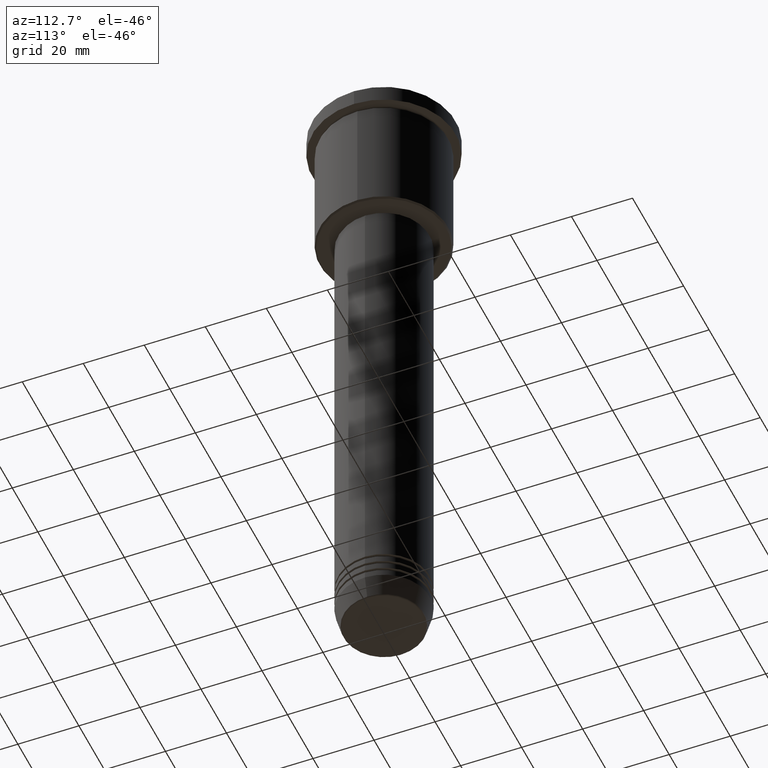
[diagram: clean part render]
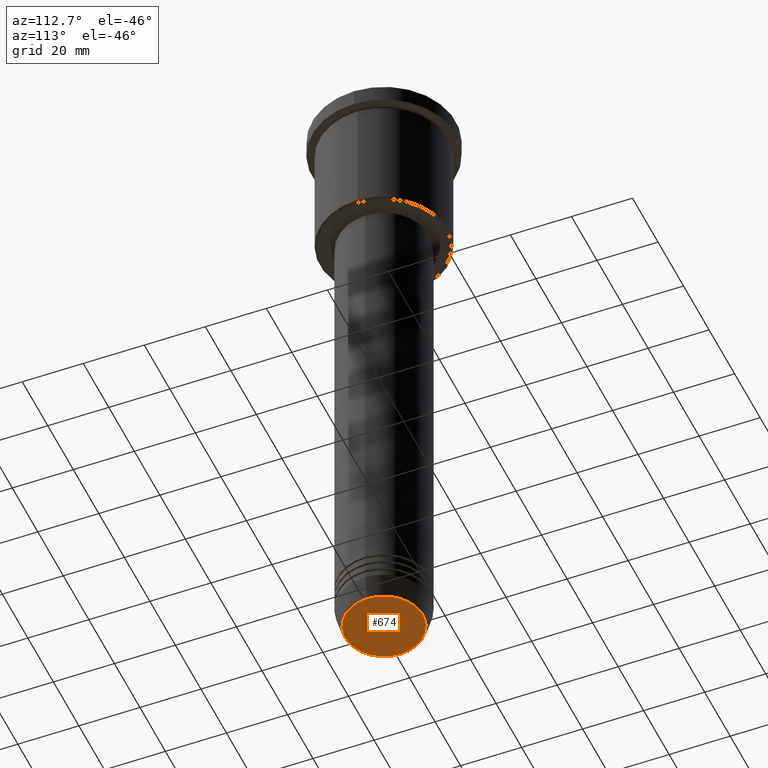
[diagram: same view with one face highlighted and labeled with its STEP entity id]
A machine part, auxiliary view. The second image highlights one B-rep face of the part: STEP entity #674.
In plain terms, the highlighted planar face has unit normal (0, -0, 1).
Its self-contained STEP definition (entity closure, byte-faithful):
#20 = EDGE_CURVE ( 'NONE', #867, #700, #1105, .T. ) ;
#75 = ORIENTED_EDGE ( 'NONE', *, *, #604, .T. ) ;
#125 = DIRECTION ( 'NONE',  ( 0.000000000000000000, -0.000000000000000000, 1.000000000000000000 ) ) ;
#127 = ORIENTED_EDGE ( 'NONE', *, *, #20, .T. ) ;
#165 = DIRECTION ( 'NONE',  ( 1.000000000000000000, 0.000000000000000000, 0.000000000000000000 ) ) ;
#201 = CARTESIAN_POINT ( 'NONE',  ( 0.000000000000000000, 0.000000000000000000, -211.0000000000000284 ) ) ;
#448 = DIRECTION ( 'NONE',  ( 0.000000000000000000, 0.000000000000000000, -1.000000000000000000 ) ) ;
#455 = CARTESIAN_POINT ( 'NONE',  ( 0.000000000000000000, 0.000000000000000000, -211.0000000000000284 ) ) ;
#511 = CARTESIAN_POINT ( 'NONE',  ( -12.74069215899266538, 1.589857736427681824E-15, -211.0000000000000284 ) ) ;
#604 = EDGE_CURVE ( 'NONE', #700, #867, #919, .T. ) ;
#674 = ADVANCED_FACE ( 'NONE', ( #876 ), #1137, .F. ) ;
#700 = VERTEX_POINT ( 'NONE', #511 ) ;
#728 = AXIS2_PLACEMENT_3D ( 'NONE', #201, #125, #943 ) ;
#748 = AXIS2_PLACEMENT_3D ( 'NONE', #455, #755, #1018 ) ;
#755 = DIRECTION ( 'NONE',  ( 0.000000000000000000, 0.000000000000000000, -1.000000000000000000 ) ) ;
#855 = CARTESIAN_POINT ( 'NONE',  ( 12.74069215899266538, 0.000000000000000000, -211.0000000000000284 ) ) ;
#867 = VERTEX_POINT ( 'NONE', #855 ) ;
#876 = FACE_OUTER_BOUND ( 'NONE', #1037, .T. ) ;
#879 = AXIS2_PLACEMENT_3D ( 'NONE', #1007, #448, #165 ) ;
#919 = CIRCLE ( 'NONE', #748, 12.74069215899266538 ) ;
#943 = DIRECTION ( 'NONE',  ( 1.000000000000000000, 0.000000000000000000, 0.000000000000000000 ) ) ;
#1007 = CARTESIAN_POINT ( 'NONE',  ( 0.000000000000000000, 0.000000000000000000, -211.0000000000000284 ) ) ;
#1018 = DIRECTION ( 'NONE',  ( 1.000000000000000000, 0.000000000000000000, 0.000000000000000000 ) ) ;
#1037 = EDGE_LOOP ( 'NONE', ( #127, #75 ) ) ;
#1105 = CIRCLE ( 'NONE', #879, 12.74069215899266538 ) ;
#1137 = PLANE ( 'NONE',  #728 ) ;